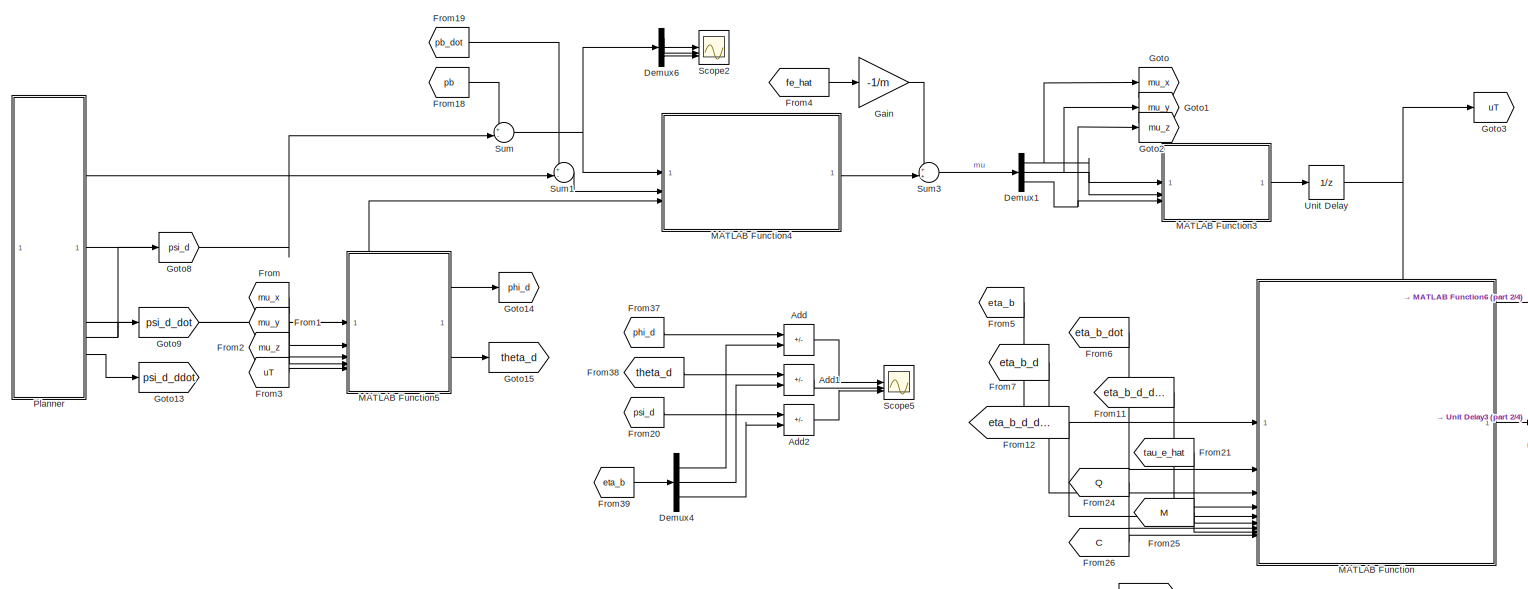
[diagram: root canvas - part 1/4, top center region]
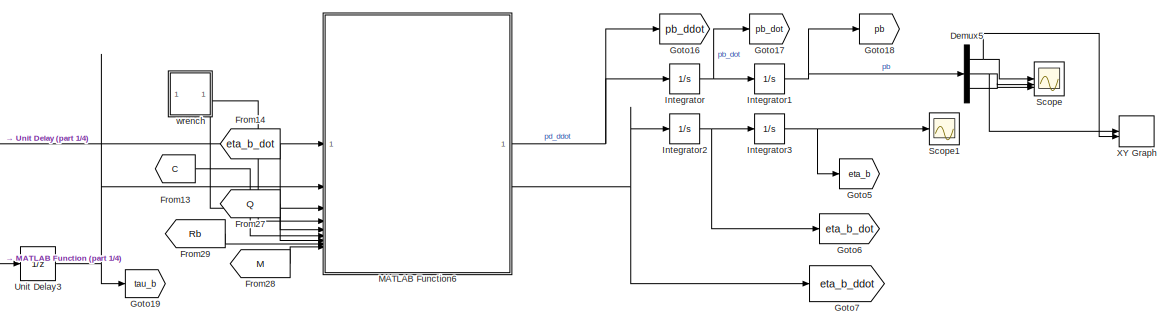
[diagram: root canvas - part 2/4, top right region]
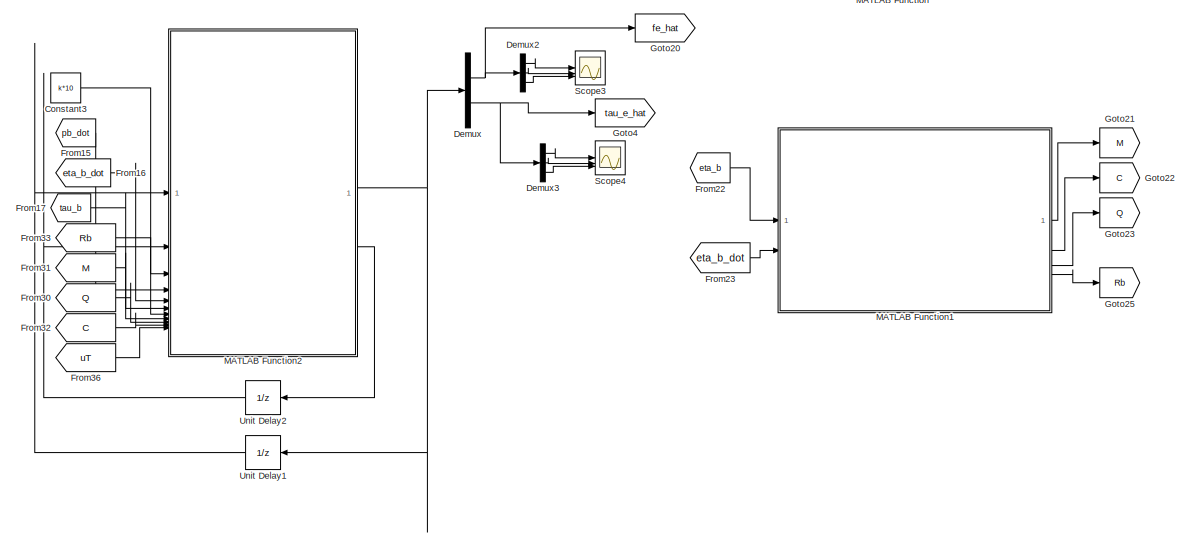
[diagram: root canvas - part 3/4, bottom center region]
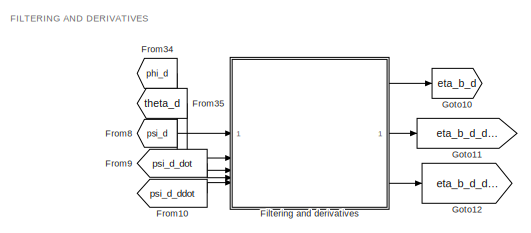
[diagram: root canvas - part 4/4, middle left region]
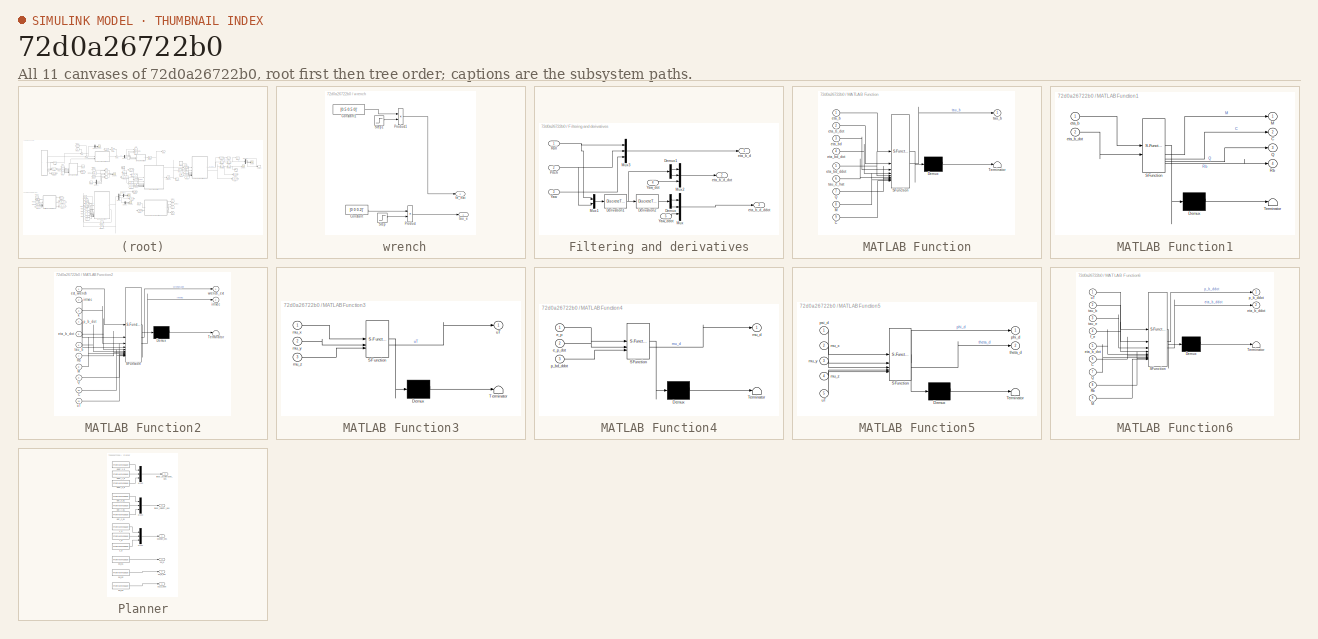
[diagram: thumbnail index - all 11 canvases of the model, root first then tree order]
MODEL slx_72d0a26722b0
KIND model
CONFIG AbsTol = auto
CONFIG EnableMultiTasking = off
CONFIG FixedStep = auto
CONFIG InitFcn = %% INITIALIZATION\nmain\n\n%% UAV PARAMETERS \n\n%% SAMPLING TIME\nTs=0.001;\n\n%% PLANNER\n% t_iniz = 0;\n% ttot=20; %duration\n% tdead=10; %dead time to evaluate the steady-state\n% tot_time = ttot + tdead;\n% t1=linspace(0,ttot,round(ttot/Ts));\n% t=linspace(0,ttot+tdead,round(ttot/Ts)+round(tdead/Ts));\n% p= zeros(4,length(t1)); dot_p= zeros(4,length(t1)); ddot_p= zeros(4,length(t1));\n% p_d= zeros(4,length(t...<+2708ch>
CONFIG MaxStep = auto
CONFIG MinStep = auto
CONFIG PreLoadFcn = Ts = 1e-3;\nm = 1;
CONFIG RelTol = 1e-3
CONFIG SampleTimeConstraint = Unconstrained
CONFIG SolverName = VariableStepAuto
CONFIG StartTime = 0.0
CONFIG StopTime = simDuration
BLOCK [SubSystem]  wrench
  Commented = on
BLOCK [Constant]  wrench/Constant
  Value = [0 0 0.2]'
BLOCK [Constant]  wrench/Constant1
  Value = [0.5 0.5 0]'
BLOCK [Product]  wrench/Product
BLOCK [Product]  wrench/Product1
BLOCK [Step]  wrench/Step
  SampleTime = 0
  Time = 10
BLOCK [Step]  wrench/Step1
  SampleTime = 0
  Time = 10
BLOCK [Outport]  wrench/fe_hat
  Port = 2
BLOCK [Outport]  wrench/tau_e
BLOCK [Sum] Add
  IconShape = rectangular
  Inputs = -+
BLOCK [Sum] Add1
  IconShape = rectangular
  Inputs = -+
BLOCK [Sum] Add2
  IconShape = rectangular
  Inputs = -+
BLOCK [Constant] Constant3
  Value = k*10
BLOCK [Demux] Demux
  Outputs = 2
BLOCK [Demux] Demux1
  Outputs = 3
BLOCK [Demux] Demux2
  Outputs = 3
BLOCK [Demux] Demux3
  Outputs = 3
BLOCK [Demux] Demux4
  Outputs = 3
BLOCK [Demux] Demux5
  Outputs = 3
BLOCK [Demux] Demux6
  Outputs = 3
BLOCK [SubSystem] Filtering and derivatives
BLOCK [Demux] Filtering and derivatives/Demux
  Outputs = 2
BLOCK [Demux] Filtering and derivatives/Demux1
  Outputs = 2
BLOCK [DiscreteTransferFcn] Filtering and derivatives/Derivation1
  Denominator = [Ts 0]
  InitialStates = [0 0]
  InputPortMap = u0
  Numerator = [1 -1]
  SampleTime = Ts
BLOCK [DiscreteTransferFcn] Filtering and derivatives/Derivation2
  Denominator = [Ts 0]
  InitialStates = [0 0]
  InputPortMap = u0
  Numerator = [1 -1]
  SampleTime = Ts
BLOCK [Mux] Filtering and derivatives/Mux
  DisplayOption = bar
  Inputs = 3
BLOCK [Mux] Filtering and derivatives/Mux1
  DisplayOption = bar
  Inputs = 2
BLOCK [Mux] Filtering and derivatives/Mux2
  DisplayOption = bar
  Inputs = 3
BLOCK [Mux] Filtering and derivatives/Mux3
  DisplayOption = bar
  Inputs = 3
BLOCK [Inport] Filtering and derivatives/Pitch
  Port = 2
BLOCK [Inport] Filtering and derivatives/Roll
BLOCK [Inport] Filtering and derivatives/Yaw
  Port = 3
BLOCK [Inport] Filtering and derivatives/Yaw_ddot
  Port = 5
BLOCK [Inport] Filtering and derivatives/Yaw_dot
  Port = 4
BLOCK [Outport] Filtering and derivatives/eta_b_d
BLOCK [Outport] Filtering and derivatives/eta_b_d_ddot
  Port = 3
BLOCK [Outport] Filtering and derivatives/eta_b_d_dot
  Port = 2
BLOCK [From] From
  GotoTag = mu_x
BLOCK [From] From1
  GotoTag = mu_y
BLOCK [From] From10
  GotoTag = psi_d_ddot
BLOCK [From] From11
  GotoTag = eta_b_d_dot
BLOCK [From] From12
  GotoTag = eta_b_d_ddot
BLOCK [From] From13
  GotoTag = C
BLOCK [From] From14
  GotoTag = eta_b_dot
BLOCK [From] From15
  GotoTag = pb_dot
BLOCK [From] From16
  GotoTag = eta_b_dot
BLOCK [From] From17
  GotoTag = tau_b
BLOCK [From] From18
  GotoTag = pb
BLOCK [From] From19
  GotoTag = pb_dot
BLOCK [From] From2
  GotoTag = mu_z
BLOCK [From] From20
  GotoTag = psi_d
BLOCK [From] From21
  GotoTag = tau_e_hat
BLOCK [From] From22
  GotoTag = eta_b
BLOCK [From] From23
  GotoTag = eta_b_dot
BLOCK [From] From24
  GotoTag = Q
BLOCK [From] From25
  GotoTag = M
BLOCK [From] From26
  GotoTag = C
BLOCK [From] From27
  GotoTag = Q
BLOCK [From] From28
  GotoTag = M
BLOCK [From] From29
  GotoTag = Rb
BLOCK [From] From3
  GotoTag = uT
BLOCK [From] From30
  GotoTag = Q
BLOCK [From] From31
  GotoTag = M
BLOCK [From] From32
  GotoTag = C
BLOCK [From] From33
  GotoTag = Rb
BLOCK [From] From34
  GotoTag = phi_d
BLOCK [From] From35
  GotoTag = theta_d
BLOCK [From] From36
  GotoTag = uT
BLOCK [From] From37
  GotoTag = phi_d
BLOCK [From] From38
  GotoTag = theta_d
BLOCK [From] From39
  GotoTag = eta_b
BLOCK [From] From4
  GotoTag = fe_hat
BLOCK [From] From5
  GotoTag = eta_b
BLOCK [From] From6
  GotoTag = eta_b_dot
BLOCK [From] From7
  GotoTag = eta_b_d
BLOCK [From] From8
  GotoTag = psi_d
BLOCK [From] From9
  GotoTag = psi_d_dot
BLOCK [Gain] Gain
  Gain = -1/m
BLOCK [Goto] Goto
  GotoTag = mu_x
BLOCK [Goto] Goto1
  GotoTag = mu_y
BLOCK [Goto] Goto10
  GotoTag = eta_b_d
BLOCK [Goto] Goto11
  GotoTag = eta_b_d_dot
BLOCK [Goto] Goto12
  GotoTag = eta_b_d_ddot
BLOCK [Goto] Goto13
  GotoTag = psi_d_ddot
BLOCK [Goto] Goto14
  GotoTag = phi_d
BLOCK [Goto] Goto15
  GotoTag = theta_d
BLOCK [Goto] Goto16
  GotoTag = pb_ddot
BLOCK [Goto] Goto17
  GotoTag = pb_dot
BLOCK [Goto] Goto18
  GotoTag = pb
BLOCK [Goto] Goto19
  GotoTag = tau_b
BLOCK [Goto] Goto2
  GotoTag = mu_z
BLOCK [Goto] Goto20
  GotoTag = fe_hat
BLOCK [Goto] Goto21
  GotoTag = M
BLOCK [Goto] Goto22
  GotoTag = C
BLOCK [Goto] Goto23
  GotoTag = Q
BLOCK [Goto] Goto25
  GotoTag = Rb
BLOCK [Goto] Goto3
  GotoTag = uT
BLOCK [Goto] Goto4
  GotoTag = tau_e_hat
BLOCK [Goto] Goto5
  GotoTag = eta_b
BLOCK [Goto] Goto6
  GotoTag = eta_b_dot
BLOCK [Goto] Goto7
  GotoTag = eta_b_ddot
BLOCK [Goto] Goto8
  GotoTag = psi_d
BLOCK [Goto] Goto9
  GotoTag = psi_d_dot
BLOCK [Integrator] Integrator
BLOCK [Integrator] Integrator1
  InitialCondition = [path(1,1); path(1,2); -1]
BLOCK [Integrator] Integrator2
BLOCK [Integrator] Integrator3
BLOCK [SubSystem] MATLAB Function
  ErrorFcn = Stateflow.Translate.translate
  PermitHierarchicalResolution = ExplicitOnly
  SFBlockType = MATLAB Function
  TreatAsAtomicUnit = on
BLOCK [Demux] MATLAB Function/ Demux 
  Outputs = 1
BLOCK [S-Function] MATLAB Function/ SFunction 
  EnableBusSupport = on
  FunctionName = sf_sfun
  PortCounts = [9 2]
  SFcnIsStateOwnerBlock = off
  SFunctionDeploymentMode = off
  Tag = Stateflow S-Function 1
BLOCK [Terminator] MATLAB Function/ Terminator 
BLOCK [Inport] MATLAB Function/C
  Port = 9
BLOCK [Inport] MATLAB Function/M
  Port = 8
BLOCK [Inport] MATLAB Function/Q
  Port = 7
BLOCK [Inport] MATLAB Function/eta_b
BLOCK [Inport] MATLAB Function/eta_b_dot
  Port = 2
BLOCK [Inport] MATLAB Function/eta_bd
  Port = 3
BLOCK [Inport] MATLAB Function/eta_bd_ddot
  Port = 5
BLOCK [Inport] MATLAB Function/eta_bd_dot
  Port = 4
BLOCK [Outport] MATLAB Function/tau_b
BLOCK [Inport] MATLAB Function/tau_e_hat
  Port = 6
BLOCK [SubSystem] MATLAB Function1
  ErrorFcn = Stateflow.Translate.translate
  PermitHierarchicalResolution = ExplicitOnly
  SFBlockType = MATLAB Function
  TreatAsAtomicUnit = on
BLOCK [Demux] MATLAB Function1/ Demux 
  Outputs = 1
BLOCK [S-Function] MATLAB Function1/ SFunction 
  EnableBusSupport = on
  FunctionName = sf_sfun
  PortCounts = [2 5]
  SFcnIsStateOwnerBlock = off
  SFunctionDeploymentMode = off
  Tag = Stateflow S-Function 4
BLOCK [Terminator] MATLAB Function1/ Terminator 
BLOCK [Outport] MATLAB Function1/C
  Port = 2
BLOCK [Outport] MATLAB Function1/M
BLOCK [Outport] MATLAB Function1/Q
  Port = 3
BLOCK [Outport] MATLAB Function1/Rb
  Port = 4
BLOCK [Inport] MATLAB Function1/eta_b
BLOCK [Inport] MATLAB Function1/eta_b_dot
  Port = 2
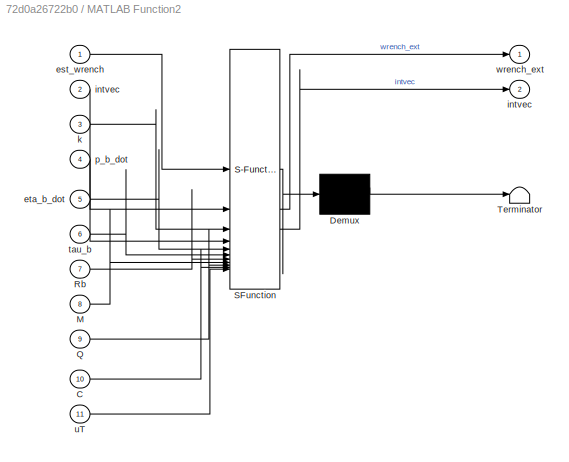
BLOCK [SubSystem] MATLAB Function2
  ErrorFcn = Stateflow.Translate.translate
  LibrarySourceBlock = simulink/User-Defined\nFunctions/MATLAB Function
  PermitHierarchicalResolution = ExplicitOnly
  SFBlockType = MATLAB Function
  TreatAsAtomicUnit = on
BLOCK [Demux] MATLAB Function2/ Demux 
  Outputs = 1
BLOCK [S-Function] MATLAB Function2/ SFunction 
  EnableBusSupport = on
  FunctionName = sf_sfun
  PortCounts = [11 3]
  SFcnIsStateOwnerBlock = off
  SFunctionDeploymentMode = off
  Tag = Stateflow S-Function 3
BLOCK [Terminator] MATLAB Function2/ Terminator 
BLOCK [Inport] MATLAB Function2/C
  Port = 10
BLOCK [Inport] MATLAB Function2/M
  Port = 8
BLOCK [Inport] MATLAB Function2/Q
  Port = 9
BLOCK [Inport] MATLAB Function2/Rb
  Port = 7
BLOCK [Inport] MATLAB Function2/est_wrench
BLOCK [Inport] MATLAB Function2/eta_b_dot
  Port = 5
BLOCK [Outport] MATLAB Function2/intvec
  Port = 2
BLOCK [Inport] MATLAB Function2/intvec 
  Port = 2
BLOCK [Inport] MATLAB Function2/k
  Port = 3
BLOCK [Inport] MATLAB Function2/p_b_dot
  Port = 4
BLOCK [Inport] MATLAB Function2/tau_b
  Port = 6
BLOCK [Inport] MATLAB Function2/uT
  Port = 11
BLOCK [Outport] MATLAB Function2/wrench_ext
BLOCK [SubSystem] MATLAB Function3
  ErrorFcn = Stateflow.Translate.translate
  PermitHierarchicalResolution = ExplicitOnly
  SFBlockType = MATLAB Function
  TreatAsAtomicUnit = on
BLOCK [Demux] MATLAB Function3/ Demux 
  Outputs = 1
BLOCK [S-Function] MATLAB Function3/ SFunction 
  EnableBusSupport = on
  FunctionName = sf_sfun
  PortCounts = [3 2]
  SFcnIsStateOwnerBlock = off
  SFunctionDeploymentMode = off
  Tag = Stateflow S-Function 6
BLOCK [Terminator] MATLAB Function3/ Terminator 
BLOCK [Inport] MATLAB Function3/mu_x
BLOCK [Inport] MATLAB Function3/mu_y
  Port = 2
BLOCK [Inport] MATLAB Function3/mu_z
  Port = 3
BLOCK [Outport] MATLAB Function3/uT
BLOCK [SubSystem] MATLAB Function4
  ErrorFcn = Stateflow.Translate.translate
  PermitHierarchicalResolution = ExplicitOnly
  SFBlockType = MATLAB Function
  TreatAsAtomicUnit = on
BLOCK [Demux] MATLAB Function4/ Demux 
  Outputs = 1
BLOCK [S-Function] MATLAB Function4/ SFunction 
  EnableBusSupport = on
  FunctionName = sf_sfun
  PortCounts = [3 2]
  SFcnIsStateOwnerBlock = off
  SFunctionDeploymentMode = off
  Tag = Stateflow S-Function 7
BLOCK [Terminator] MATLAB Function4/ Terminator 
BLOCK [Inport] MATLAB Function4/e_p
BLOCK [Inport] MATLAB Function4/e_p_dot
  Port = 2
BLOCK [Outport] MATLAB Function4/mu_d
BLOCK [Inport] MATLAB Function4/p_bd_ddot
  Port = 3
BLOCK [SubSystem] MATLAB Function5
  ErrorFcn = Stateflow.Translate.translate
  PermitHierarchicalResolution = ExplicitOnly
  SFBlockType = MATLAB Function
  TreatAsAtomicUnit = on
BLOCK [Demux] MATLAB Function5/ Demux 
  Outputs = 1
BLOCK [S-Function] MATLAB Function5/ SFunction 
  EnableBusSupport = on
  FunctionName = sf_sfun
  PortCounts = [5 3]
  SFcnIsStateOwnerBlock = off
  SFunctionDeploymentMode = off
  Tag = Stateflow S-Function 8
BLOCK [Terminator] MATLAB Function5/ Terminator 
BLOCK [Inport] MATLAB Function5/mu_x
  Port = 2
BLOCK [Inport] MATLAB Function5/mu_y
  Port = 3
BLOCK [Inport] MATLAB Function5/mu_z
  Port = 4
BLOCK [Outport] MATLAB Function5/phi_d
BLOCK [Inport] MATLAB Function5/psi_d
BLOCK [Outport] MATLAB Function5/theta_d
  Port = 2
BLOCK [Inport] MATLAB Function5/uT
  Port = 5
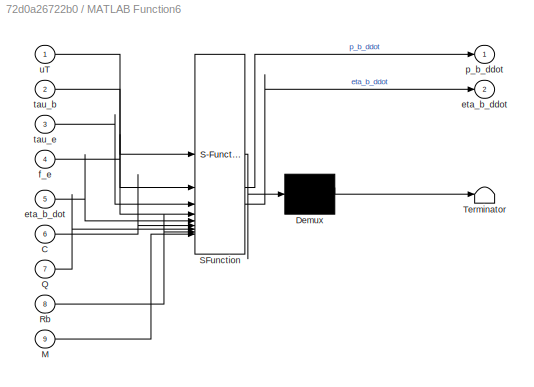
BLOCK [SubSystem] MATLAB Function6
  ErrorFcn = Stateflow.Translate.translate
  PermitHierarchicalResolution = ExplicitOnly
  SFBlockType = MATLAB Function
  TreatAsAtomicUnit = on
BLOCK [Demux] MATLAB Function6/ Demux 
  Outputs = 1
BLOCK [S-Function] MATLAB Function6/ SFunction 
  EnableBusSupport = on
  FunctionName = sf_sfun
  PortCounts = [9 3]
  SFcnIsStateOwnerBlock = off
  SFunctionDeploymentMode = off
  Tag = Stateflow S-Function 2
BLOCK [Terminator] MATLAB Function6/ Terminator 
BLOCK [Inport] MATLAB Function6/C
  Port = 6
BLOCK [Inport] MATLAB Function6/M
  Port = 9
BLOCK [Inport] MATLAB Function6/Q
  Port = 7
BLOCK [Inport] MATLAB Function6/Rb
  Port = 8
BLOCK [Outport] MATLAB Function6/eta_b_ddot
  Port = 2
BLOCK [Inport] MATLAB Function6/eta_b_dot
  Port = 5
BLOCK [Inport] MATLAB Function6/f_e
  Port = 4
BLOCK [Outport] MATLAB Function6/p_b_ddot
BLOCK [Inport] MATLAB Function6/tau_b
  Port = 2
BLOCK [Inport] MATLAB Function6/tau_e
  Port = 3
BLOCK [Inport] MATLAB Function6/uT
BLOCK [SubSystem] Planner
BLOCK [Mux] Planner/Mux1
  DisplayOption = bar
  Inputs = 3
BLOCK [Mux] Planner/Mux2
  DisplayOption = bar
  Inputs = 3
BLOCK [Mux] Planner/Mux3
  DisplayOption = bar
  Inputs = 3
BLOCK [FromWorkspace] Planner/ddot_x_d
  SampleTime = Ts
  VariableName = [time_vec' ddot_csi_d(1,:)']
BLOCK [FromWorkspace] Planner/ddot_y_d
  SampleTime = Ts
  VariableName = [time_vec' ddot_csi_d(2,:)']
BLOCK [FromWorkspace] Planner/ddot_z_d
  SampleTime = Ts
  VariableName = [time_vec' ddot_csi_d(3,:)']
BLOCK [FromWorkspace] Planner/dot_x_d1
  SampleTime = Ts
  VariableName = [time_vec' dot_csi_d(1,:)']
BLOCK [FromWorkspace] Planner/dot_y_d1
  SampleTime = Ts
  VariableName = [time_vec' dot_csi_d(2,:)']
BLOCK [FromWorkspace] Planner/dot_z_d1
  SampleTime = Ts
  VariableName = [time_vec' dot_csi_d(3,:)']
BLOCK [Outport] Planner/linear_acceleration_des
  Port = 3
BLOCK [Outport] Planner/linear_velocity_des
  Port = 2
BLOCK [Outport] Planner/position_des
BLOCK [Outport] Planner/psi_d
  Port = 4
BLOCK [FromWorkspace] Planner/psi_d1
  SampleTime = Ts
  VariableName = [time_vec' psi_d']
BLOCK [FromWorkspace] Planner/psi_d2
  SampleTime = Ts
  VariableName = [time_vec' dot_psi_d']
BLOCK [FromWorkspace] Planner/psi_d3
  SampleTime = Ts
  VariableName = [time_vec' ddot_psi_d']
BLOCK [Outport] Planner/psi_d_ddot
  Port = 6
BLOCK [Outport] Planner/psi_d_dot
  Port = 5
BLOCK [FromWorkspace] Planner/x_d
  SampleTime = Ts
  VariableName = [time_vec' csi_d(1,:)']
BLOCK [FromWorkspace] Planner/y_d
  SampleTime = Ts
  VariableName = [time_vec' csi_d(2,:)']
BLOCK [FromWorkspace] Planner/z_d
  SampleTime = Ts
  VariableName = [time_vec' csi_d(3,:)']
BLOCK [Scope] Scope
  Floating = off
  NumInputPorts = 3
  ScopeSpecificationString = Simulink.scopes.TimeScopeBlockCfg('CurrentConfiguration', extmgr.ConfigurationSet(extmgr.Configuration('Core','General UI',true),extmgr.Configuration('Core','Source UI',true),extmgr.Configuration('Sources','WiredSimulink',true),extmgr.Configuration('Visuals','Time Domain',true,'SerializedDisplays',{struct('MinYLimReal','28.625','MaxYLimReal','42.375','YLabelReal','','MinYLimMag','28.625','MaxYLimM...<+3161ch>
BLOCK [Scope] Scope1
  Floating = off
  NumInputPorts = 1
  ScopeSpecificationString = Simulink.scopes.TimeScopeBlockCfg('CurrentConfiguration', extmgr.ConfigurationSet(extmgr.Configuration('Core','General UI',true),extmgr.Configuration('Core','Source UI',true),extmgr.Configuration('Sources','WiredSimulink',true,'DataLoggingVariableName','ScopeData1'),extmgr.Configuration('Visuals','Time Domain',true,'SerializedDisplays',{struct('MinYLimReal','-1.00000','MaxYLimReal','1.00000','YLab...<+1535ch>
BLOCK [Scope] Scope2
  Floating = off
  NumInputPorts = 3
  ScopeSpecificationString = Simulink.scopes.TimeScopeBlockCfg('CurrentConfiguration', extmgr.ConfigurationSet(extmgr.Configuration('Core','General UI',true),extmgr.Configuration('Core','Source UI',true),extmgr.Configuration('Sources','WiredSimulink',true,'DataLoggingVariableName','ScopeData1'),extmgr.Configuration('Visuals','Time Domain',true,'SerializedDisplays',{struct('MinYLimReal','-0.00246','MaxYLimReal','0.00236','YLab...<+3217ch>
BLOCK [Scope] Scope3
  Floating = off
  NumInputPorts = 3
  ScopeSpecificationString = Simulink.scopes.TimeScopeBlockCfg('CurrentConfiguration', extmgr.ConfigurationSet(extmgr.Configuration('Core','General UI',true),extmgr.Configuration('Core','Source UI',true),extmgr.Configuration('Sources','WiredSimulink',true,'DataLoggingVariableName','ScopeData2'),extmgr.Configuration('Visuals','Time Domain',true,'SerializedDisplays',{struct('MinYLimReal','-0.00037','MaxYLimReal','0.00095','YLab...<+3067ch>
BLOCK [Scope] Scope4
  Floating = off
  NumInputPorts = 3
  ScopeSpecificationString = Simulink.scopes.TimeScopeBlockCfg('CurrentConfiguration', extmgr.ConfigurationSet(extmgr.Configuration('Core','General UI',true),extmgr.Configuration('Core','Source UI',true),extmgr.Configuration('Sources','WiredSimulink',true,'DataLoggingVariableName','ScopeData3'),extmgr.Configuration('Visuals','Time Domain',true,'SerializedDisplays',{struct('MinYLimReal','-653.9929','MaxYLimReal','969.83469','Y...<+3075ch>
BLOCK [Scope] Scope5
  Floating = off
  NumInputPorts = 3
  ScopeSpecificationString = Simulink.scopes.TimeScopeBlockCfg('CurrentConfiguration', extmgr.ConfigurationSet(extmgr.Configuration('Core','General UI',true),extmgr.Configuration('Core','Source UI',true),extmgr.Configuration('Sources','WiredSimulink',true,'DataLoggingVariableName','ScopeData4'),extmgr.Configuration('Visuals','Time Domain',true,'SerializedDisplays',{struct('MinYLimReal','-0.000000000000000022','MaxYLimReal','0...<+3098ch>
BLOCK [Sum] Sum
  Inputs = +-|
BLOCK [Sum] Sum1
  Inputs = +-|
BLOCK [Sum] Sum3
  Inputs = ++|
BLOCK [UnitDelay] Unit Delay
  HasFrameUpgradeWarning = on
  InitialCondition = m*g
  SampleTime = Ts
BLOCK [UnitDelay] Unit Delay1
  HasFrameUpgradeWarning = on
  InitialCondition = zeros(6,1)
  NameLocation = top
  SampleTime = Ts
BLOCK [UnitDelay] Unit Delay2
  HasFrameUpgradeWarning = on
  InitialCondition = intv
  NameLocation = top
  SampleTime = Ts
BLOCK [UnitDelay] Unit Delay3
  HasFrameUpgradeWarning = on
  SampleTime = Ts
BLOCK [Record] XY Graph
  CompatibilityTag = XY
  FileSettingsInternal = {"entries":[{"content":{"excelSettings":{"content":{},"type":"Streamout.ExcelSettings"}},"type":"Streamout.FileSettingStorage","uuid":""}],"packageUris":["http:\/\/schema.mathworks.com\/mf0\/streamout_blocks\/R2020a"],"version":"1.0"}
  Layout = [1 1]
  SignalsInternal = {"entries":[{"content":{"signals":[{"content":{"blockPath":[],"dimensions":[1,1],"domain":"","lineColor":"#a2142f","plots":[ 1 ],"port":1,"sid":[""],"signalID":1,"signalName":"Demux5:1"},"type":"RecordBlkView.Signal","uuid":""},{"content":{"blockPath":[],"dimensions":[1,1],"domain":"","lineColor":"#139fff","plots":[ 1 ],"port":2,"sid":[""],"signalID":2,"signalName":"Demux5:2"},"type":"RecordBlkVie...<+166ch>
  VisualizationBindings = {"xyplotplugin":{"info":[{"series":[{"bindingParametersList":[{"parameter":"X-Axis","signalID":1,"signalName":"Demux5:1"},{"parameter":"Y-Axis","signalID":2,"signalName":"Demux5:2"}],"seriesID":0}],"subplotID":1}]}}
ANNOTATION (root): FILTERING AND DERIVATIVES
LINE  wrench/Constant1:1 ->  wrench/Product1:1
LINE  wrench/Constant:1 ->  wrench/Product:1
LINE  wrench/Product1:1 ->  wrench/fe_hat:1
LINE  wrench/Product:1 ->  wrench/tau_e:1
LINE  wrench/Step1:1 ->  wrench/Product1:2
LINE  wrench/Step:1 ->  wrench/Product:2
LINE  wrench:1 -> MATLAB Function6:3
LINE  wrench:2 -> MATLAB Function6:4
LINE Add1:1 -> Scope5:2
LINE Add2:1 -> Scope5:3
LINE Add:1 -> Scope5:1
LINE Constant3:1 -> MATLAB Function2:3
NET Demux1:1 -> Goto:1, MATLAB Function3:1
NET Demux1:2 -> Goto1:1, MATLAB Function3:2
NET Demux1:3 -> Goto2:1, MATLAB Function3:3
LINE Demux2:1 -> Scope3:1
LINE Demux2:2 -> Scope3:2
LINE Demux2:3 -> Scope3:3
LINE Demux3:1 -> Scope4:1
LINE Demux3:2 -> Scope4:2
LINE Demux3:3 -> Scope4:3
LINE Demux4:1 -> Add:2
LINE Demux4:2 -> Add1:2
LINE Demux4:3 -> Add2:2
NET Demux5:1 -> Scope:1, XY Graph:2
NET Demux5:2 -> Scope:2, XY Graph:1
LINE Demux5:3 -> Scope:3
LINE Demux6:1 -> Scope2:1
LINE Demux6:2 -> Scope2:2
LINE Demux6:3 -> Scope2:3
NET Demux:1 -> Demux2:1, Goto20:1
NET Demux:2 -> Demux3:1, Goto4:1
LINE Filtering and derivatives/Demux1:1 -> Filtering and derivatives/Mux2:1
LINE Filtering and derivatives/Demux1:2 -> Filtering and derivatives/Mux2:2
LINE Filtering and derivatives/Demux:1 -> Filtering and derivatives/Mux:1
LINE Filtering and derivatives/Demux:2 -> Filtering and derivatives/Mux:2
NET Filtering and derivatives/Derivation1:1 -> Filtering and derivatives/Demux1:1, Filtering and derivatives/Derivation2:1
LINE Filtering and derivatives/Derivation2:1 -> Filtering and derivatives/Demux:1
LINE Filtering and derivatives/Mux1:1 -> Filtering and derivatives/Derivation1:1
LINE Filtering and derivatives/Mux2:1 -> Filtering and derivatives/eta_b_d_dot:1
LINE Filtering and derivatives/Mux3:1 -> Filtering and derivatives/eta_b_d:1
LINE Filtering and derivatives/Mux:1 -> Filtering and derivatives/eta_b_d_ddot:1
NET Filtering and derivatives/Pitch:1 -> Filtering and derivatives/Mux1:2, Filtering and derivatives/Mux3:2
NET Filtering and derivatives/Roll:1 -> Filtering and derivatives/Mux1:1, Filtering and derivatives/Mux3:1
LINE Filtering and derivatives/Yaw:1 -> Filtering and derivatives/Mux3:3
LINE Filtering and derivatives/Yaw_ddot:1 -> Filtering and derivatives/Mux:3
LINE Filtering and derivatives/Yaw_dot:1 -> Filtering and derivatives/Mux2:3
LINE Filtering and derivatives:1 -> Goto10:1
LINE Filtering and derivatives:2 -> Goto11:1
LINE Filtering and derivatives:3 -> Goto12:1
LINE From10:1 -> Filtering and derivatives:5
LINE From11:1 -> MATLAB Function:4
LINE From12:1 -> MATLAB Function:5
LINE From13:1 -> MATLAB Function6:6
LINE From14:1 -> MATLAB Function6:5
LINE From15:1 -> MATLAB Function2:4
LINE From16:1 -> MATLAB Function2:5
LINE From17:1 -> MATLAB Function2:6
LINE From18:1 -> Sum:1
LINE From19:1 -> Sum1:1
LINE From1:1 -> MATLAB Function5:3
LINE From20:1 -> Add2:1
LINE From21:1 -> MATLAB Function:6
LINE From22:1 -> MATLAB Function1:1
LINE From23:1 -> MATLAB Function1:2
LINE From24:1 -> MATLAB Function:7
LINE From25:1 -> MATLAB Function:8
LINE From26:1 -> MATLAB Function:9
LINE From27:1 -> MATLAB Function6:7
LINE From28:1 -> MATLAB Function6:9
LINE From29:1 -> MATLAB Function6:8
LINE From2:1 -> MATLAB Function5:4
LINE From30:1 -> MATLAB Function2:9
LINE From31:1 -> MATLAB Function2:8
LINE From32:1 -> MATLAB Function2:10
LINE From33:1 -> MATLAB Function2:7
LINE From34:1 -> Filtering and derivatives:1
LINE From35:1 -> Filtering and derivatives:2
LINE From36:1 -> MATLAB Function2:11
LINE From37:1 -> Add:1
LINE From38:1 -> Add1:1
LINE From39:1 -> Demux4:1
LINE From3:1 -> MATLAB Function5:5
LINE From4:1 -> Gain:1
LINE From5:1 -> MATLAB Function:1
LINE From6:1 -> MATLAB Function:2
LINE From7:1 -> MATLAB Function:3
LINE From8:1 -> Filtering and derivatives:3
LINE From9:1 -> Filtering and derivatives:4
LINE From:1 -> MATLAB Function5:2
LINE Gain:1 -> Sum3:1
NET Integrator1:1 -> Demux5:1, Goto18:1
NET Integrator2:1 -> Goto6:1, Integrator3:1
NET Integrator3:1 -> Goto5:1, Scope1:1
NET Integrator:1 -> Goto17:1, Integrator1:1
LINE MATLAB Function1:1 -> Goto21:1
LINE MATLAB Function1:2 -> Goto22:1
LINE MATLAB Function1:3 -> Goto23:1
LINE MATLAB Function1:4 -> Goto25:1
NET MATLAB Function2:1 -> Demux:1, Unit Delay1:1
LINE MATLAB Function2:2 -> Unit Delay2:1
LINE MATLAB Function3:1 -> Unit Delay:1
LINE MATLAB Function4:1 -> Sum3:2
LINE MATLAB Function5:1 -> Goto14:1
LINE MATLAB Function5:2 -> Goto15:1
NET MATLAB Function6:1 -> Goto16:1, Integrator:1
NET MATLAB Function6:2 -> Goto7:1, Integrator2:1
LINE MATLAB Function:1 -> Unit Delay3:1
LINE Planner/Mux1:1 -> Planner/position_des:1
LINE Planner/Mux2:1 -> Planner/linear_acceleration_des:1
LINE Planner/Mux3:1 -> Planner/linear_velocity_des:1
LINE Planner/ddot_x_d:1 -> Planner/Mux2:1
LINE Planner/ddot_y_d:1 -> Planner/Mux2:2
LINE Planner/ddot_z_d:1 -> Planner/Mux2:3
LINE Planner/dot_x_d1:1 -> Planner/Mux3:1
LINE Planner/dot_y_d1:1 -> Planner/Mux3:2
LINE Planner/dot_z_d1:1 -> Planner/Mux3:3
LINE Planner/psi_d1:1 -> Planner/psi_d:1
LINE Planner/psi_d2:1 -> Planner/psi_d_dot:1
LINE Planner/psi_d3:1 -> Planner/psi_d_ddot:1
LINE Planner/x_d:1 -> Planner/Mux1:1
LINE Planner/y_d:1 -> Planner/Mux1:2
LINE Planner/z_d:1 -> Planner/Mux1:3
LINE Planner:1 -> Sum:2
LINE Planner:2 -> Sum1:2
LINE Planner:3 -> MATLAB Function4:3
NET Planner:4 -> Goto8:1, MATLAB Function5:1
LINE Planner:5 -> Goto9:1
LINE Planner:6 -> Goto13:1
LINE Sum1:1 -> MATLAB Function4:2
LINE Sum3:1 -> Demux1:1
NET Sum:1 -> Demux6:1, MATLAB Function4:1
LINE Unit Delay1:1 -> MATLAB Function2:1
LINE Unit Delay2:1 -> MATLAB Function2:2
NET Unit Delay3:1 -> Goto19:1, MATLAB Function6:2
NET Unit Delay:1 -> Goto3:1, MATLAB Function6:1
note: NET lines group one-source signal fan-out (src -> all destinations, sorted); 1:1 wires keep LINE
CHART MATLAB Function4 states=1 transitions=1
  STATE_LABEL 'eML_blk_kernel()'
  STATE_LABEL 'SCRIPT:\nfunction mu_d = fcn(e_p, e_p_dot, p_bd_ddot)\n\nKp = 50*diag([1 1 20]);\nKd = 50*diag([1 1 1]);\n\nmu_d = -Kd*e_p_dot-Kp*e_p+p_bd_ddot;\n'
CHART MATLAB Function5 states=1 transitions=1
  STATE_LABEL 'eML_blk_kernel()'
  STATE_LABEL 'SCRIPT:\nfunction [phi_d,theta_d] = fcn(psi_d,mu_x,mu_y,mu_z,uT)\n\nm = 1;\ng = 9.81;\n\n\narg = (m/uT)*(mu_y*cos(psi_d)-mu_x*sin(psi_d));\narg = max(min(arg,1),-1);\n\n% \n% if arg < -1\n%     phi_d = asin(-1);\n% elseif arg > 1\n%     phi_d = asin(1);\n% else\n%     phi_d = asin(arg);\n% end\n\nphi_d = asin(arg);\ntheta_d = atan((mu_x*cos(psi_d)+mu_y*sin(psi_d))/(mu_z-g));\n'
CHART MATLAB Function states=1 transitions=1
  STATE_LABEL 'eML_blk_kernel()'
  STATE_LABEL "SCRIPT:\nfunction tau_b = fcn(eta_b, eta_b_dot, eta_bd, eta_bd_dot, eta_bd_ddot, tau_e_hat, Q, M, C)\n\n    sigma = 10;\n    ni = 10;\n    \n    Do = 10*diag([1 1 1]);\n    Ko = sigma*Do;\n    \n    e_eta = eta_b - eta_bd;\n    e_eta_dot = eta_b_dot - eta_bd_dot;\n    v_eta = e_eta_dot + sigma*e_eta;\n    eta_r_dot = eta_bd - sigma*e_eta;\n    eta_r_ddot = eta_bd_ddot - ni*e_eta_dot;\n    \n    tau_b = (inv(Q)')...<+63ch>"
CHART MATLAB Function6 states=1 transitions=1
  STATE_LABEL 'eML_blk_kernel()'
  STATE_LABEL "SCRIPT:\nfunction [p_b_ddot,eta_b_ddot] = fcn(uT,tau_b,tau_e,f_e,eta_b_dot,C,Q,Rb,M)\n\nm = 1;\ng = 9.81;\ne3 = [0 0 1]';\n\np_b_ddot = g*e3 - (1/m)*uT*Rb*e3 + f_e;\neta_b_ddot = inv(M)*(-C*eta_b_dot+Q'*tau_b+tau_e);\n\n"
CHART MATLAB Function2 states=1 transitions=1
  STATE_LABEL 'eML_blk_kernel()'
  STATE_LABEL "SCRIPT:\nfunction [wrench_ext,intvec] = estimation(est_wrench,intvec, k,p_b_dot, eta_b_dot,tau_b,Rb,M,Q,C,uT)\n\n    m = 1;\n    g = 9.81;\n    e3 = [0 0 1]';\n    r = 1;\n    \n    % Momentum\n    q = [m*eye(3) zeros(3) ; zeros(3) M]*[p_b_dot ; eta_b_dot];\n\n    % Integral vector\n    intmat= [m*g*e3 - uT*Rb*e3; C'*eta_b_dot + Q' * tau_b];\n  \n    dt=1e-3;\n    gamma=zeros(6,r);\n\n    for i=1:r\n        if i==1...<+292ch>"
CHART MATLAB Function1 states=1 transitions=1
  STATE_LABEL 'eML_blk_kernel()'
  STATE_LABEL 'SCRIPT:\nfunction [M,C,Q,Rb] = matrices(eta_b,eta_b_dot)\n\nIb = diag([1.2416 1.2416 2*1.2416]);\n\n\nphi = eta_b(1);\ntheta = eta_b(2);\npsi = eta_b(3);\n\n\nphi_dot = eta_b_dot(1);\ntheta_dot = eta_b_dot(2);\npsi_dot = eta_b_dot(3);\n\n% Q matrix\nQ =[1 0 -sin(theta); \n      0 cos(phi) cos(theta)*sin(phi); \n      0 -sin(phi) cos(theta)*cos(phi)];\n\n\nQ_dot=[0 0 -theta_dot*cos(theta); \n          0 -phi_dot*sin(phi...<+748ch>'
CHART MATLAB Function3 states=1 transitions=1
  STATE_LABEL 'eML_blk_kernel()'
  STATE_LABEL 'SCRIPT:\nfunction uT = fcn(mu_x,mu_y,mu_z)\n\nm = 1;\ng = 9.81;\n\nuT = m*sqrt(mu_x^2+mu_y^2+(mu_z^2-g)^2);\n'
CHART  states=0 transitions=0
CHART  states=0 transitions=0
CHART  states=0 transitions=0
CHART  states=0 transitions=0
CHART  states=0 transitions=0
CHART  states=0 transitions=0
CHART  states=0 transitions=0
